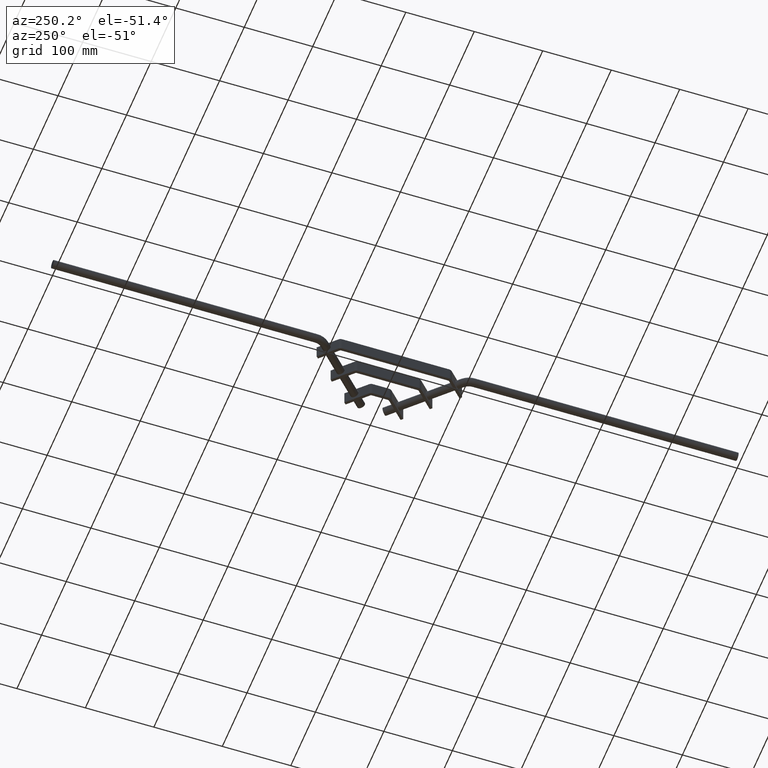
[diagram: clean part render]
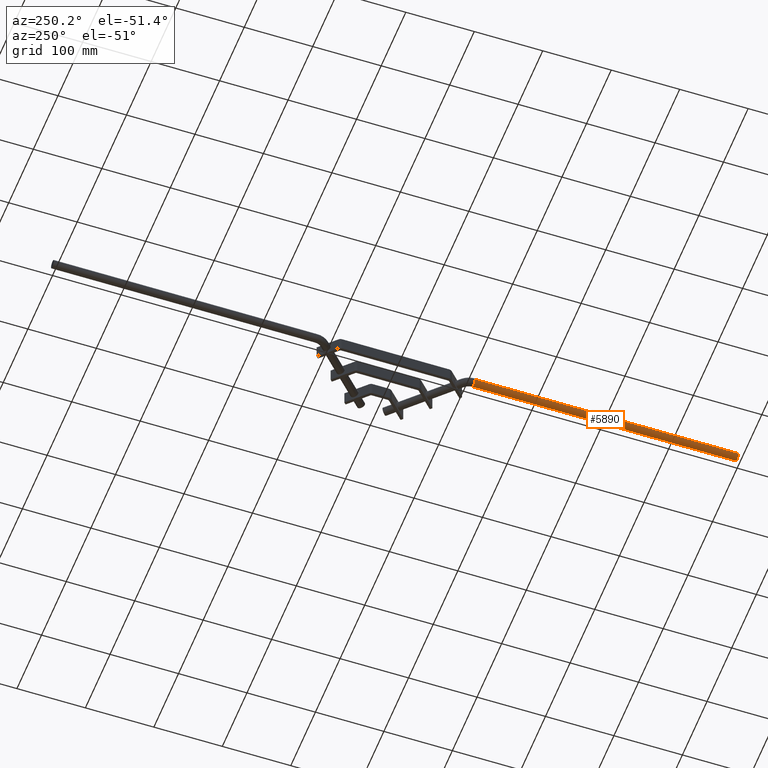
[diagram: same view with one face highlighted and labeled with its STEP entity id]
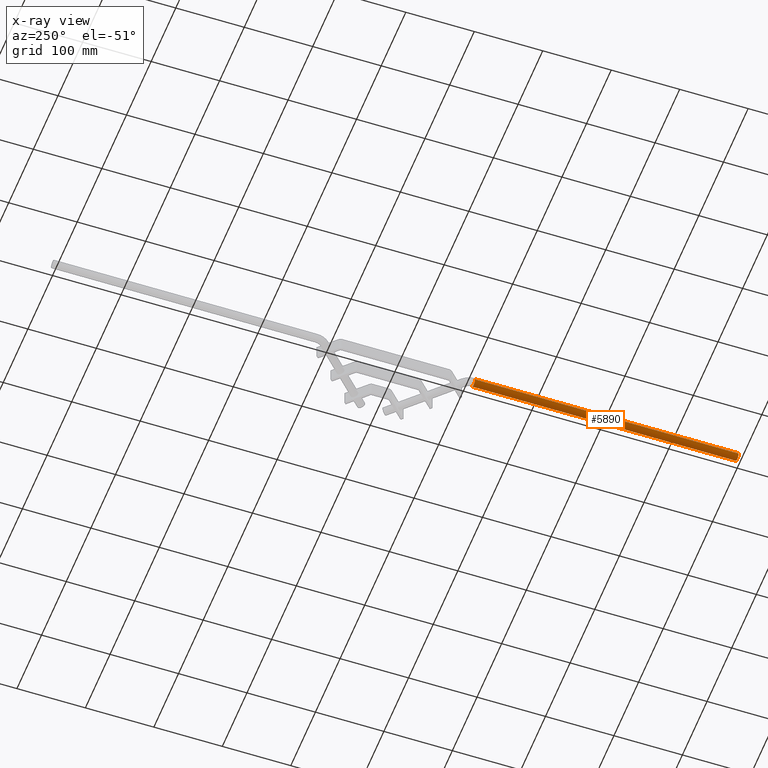
[diagram: x-ray of the same camera — body ghosted, the highlighted face saturated]
A machine part, auxiliary view. The second image highlights one B-rep face of the part: STEP entity #5890.
The next image is the same camera in x-ray: the body ghosted, the highlighted face saturated — about 0% of this face is hidden behind the body in this view.
In plain terms, the highlighted cylindrical surface (edge-blend (fillet) strip) has radius 6 mm, axis along (0, -1, -0).
Its self-contained STEP definition (entity closure, byte-faithful):
#81 = CARTESIAN_POINT ( 'NONE',  ( 5.999999999998562900, 385.0000000000000000, 0.0000000000000000000 ) ) ;
#376 = VECTOR ( 'NONE', #3222, 1000.000000000000000 ) ;
#569 = LINE ( 'NONE', #81, #376 ) ;
#661 = VERTEX_POINT ( 'NONE', #3376 ) ;
#761 = ORIENTED_EDGE ( 'NONE', *, *, #7661, .T. ) ;
#918 = CARTESIAN_POINT ( 'NONE',  ( 5.999999999998562900, 385.0000000000000000, 0.0000000000000000000 ) ) ;
#1145 = CARTESIAN_POINT ( 'NONE',  ( -1.438518118988952300E-012, 385.0000000000000000, 0.0000000000000000000 ) ) ;
#1303 = AXIS2_PLACEMENT_3D ( 'NONE', #6115, #2490, #6714 ) ;
#1654 = DIRECTION ( 'NONE',  ( 3.736410698672603700E-015, -1.000000000000000000, -0.0000000000000000000 ) ) ;
#1793 = DIRECTION ( 'NONE',  ( 0.0000000000000000000, 0.0000000000000000000, 1.000000000000000000 ) ) ;
#1904 = AXIS2_PLACEMENT_3D ( 'NONE', #1145, #5469, #1793 ) ;
#2014 = VERTEX_POINT ( 'NONE', #6113 ) ;
#2162 = CARTESIAN_POINT ( 'NONE',  ( -6.000000000001438800, 385.0000000000000000, 7.347880794884120700E-016 ) ) ;
#2240 = EDGE_CURVE ( 'NONE', #5381, #661, #6518, .T. ) ;
#2490 = DIRECTION ( 'NONE',  ( 0.0000000000000000000, 1.000000000000000000, 0.0000000000000000000 ) ) ;
#3222 = DIRECTION ( 'NONE',  ( 3.736410698672603700E-015, -1.000000000000000000, -0.0000000000000000000 ) ) ;
#3318 = CIRCLE ( 'NONE', #1303, 6.000000000000000900 ) ;
#3376 = CARTESIAN_POINT ( 'NONE',  ( -6.000000000001438800, 385.0000000000000000, 7.347880794885001300E-016 ) ) ;
#3504 = EDGE_CURVE ( 'NONE', #5381, #3822, #569, .T. ) ;
#3650 = EDGE_CURVE ( 'NONE', #661, #2014, #3771, .T. ) ;
#3771 = LINE ( 'NONE', #2162, #6984 ) ;
#3822 = VERTEX_POINT ( 'NONE', #5323 ) ;
#4269 = AXIS2_PLACEMENT_3D ( 'NONE', #5348, #1654, #6507 ) ;
#4919 = FACE_OUTER_BOUND ( 'NONE', #4966, .T. ) ;
#4966 = EDGE_LOOP ( 'NONE', ( #5966, #7587, #5929, #761 ) ) ;
#5323 = CARTESIAN_POINT ( 'NONE',  ( 6.000000000000000900, 0.0000000000000000000, 0.0000000000000000000 ) ) ;
#5348 = CARTESIAN_POINT ( 'NONE',  ( -1.438518118988952300E-012, 385.0000000000000000, 0.0000000000000000000 ) ) ;
#5381 = VERTEX_POINT ( 'NONE', #918 ) ;
#5469 = DIRECTION ( 'NONE',  ( 0.0000000000000000000, 1.000000000000000000, 0.0000000000000000000 ) ) ;
#5890 = ADVANCED_FACE ( 'NONE', ( #4919 ), #7892, .T. ) ;
#5929 = ORIENTED_EDGE ( 'NONE', *, *, #3504, .T. ) ;
#5966 = ORIENTED_EDGE ( 'NONE', *, *, #3650, .F. ) ;
#6113 = CARTESIAN_POINT ( 'NONE',  ( -6.000000000000000900, 0.0000000000000000000, 7.347880794884120700E-016 ) ) ;
#6115 = CARTESIAN_POINT ( 'NONE',  ( 0.0000000000000000000, 0.0000000000000000000, 0.0000000000000000000 ) ) ;
#6406 = DIRECTION ( 'NONE',  ( 3.736410698672603700E-015, -1.000000000000000000, -0.0000000000000000000 ) ) ;
#6507 = DIRECTION ( 'NONE',  ( 1.000000000000000000, 0.0000000000000000000, 0.0000000000000000000 ) ) ;
#6518 = CIRCLE ( 'NONE', #1904, 6.000000000000000900 ) ;
#6714 = DIRECTION ( 'NONE',  ( 0.0000000000000000000, 0.0000000000000000000, 1.000000000000000000 ) ) ;
#6984 = VECTOR ( 'NONE', #6406, 1000.000000000000000 ) ;
#7587 = ORIENTED_EDGE ( 'NONE', *, *, #2240, .F. ) ;
#7661 = EDGE_CURVE ( 'NONE', #3822, #2014, #3318, .T. ) ;
#7892 = CYLINDRICAL_SURFACE ( 'NONE', #4269, 6.000000000000000900 ) ;